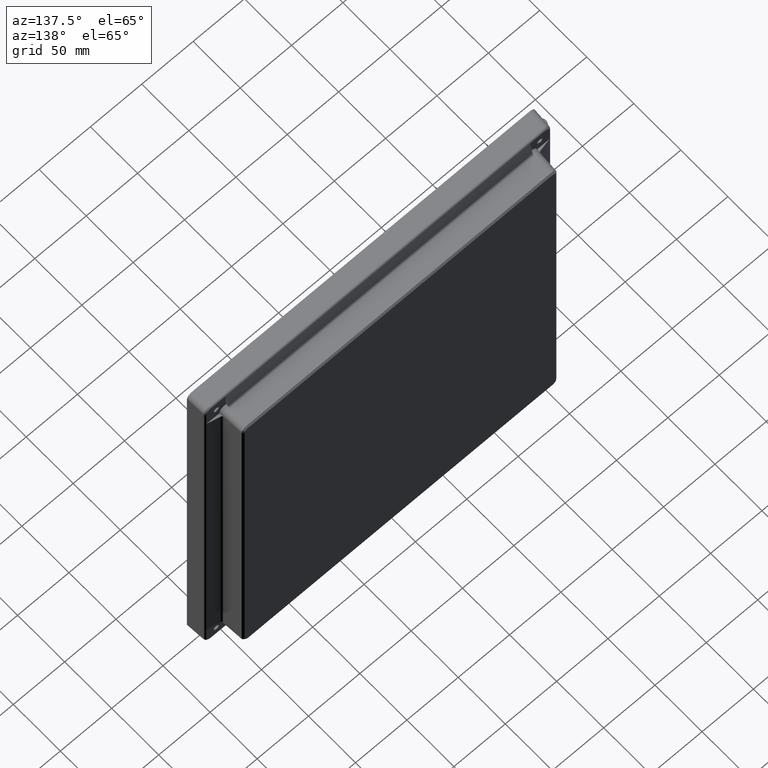
[diagram: clean part render]
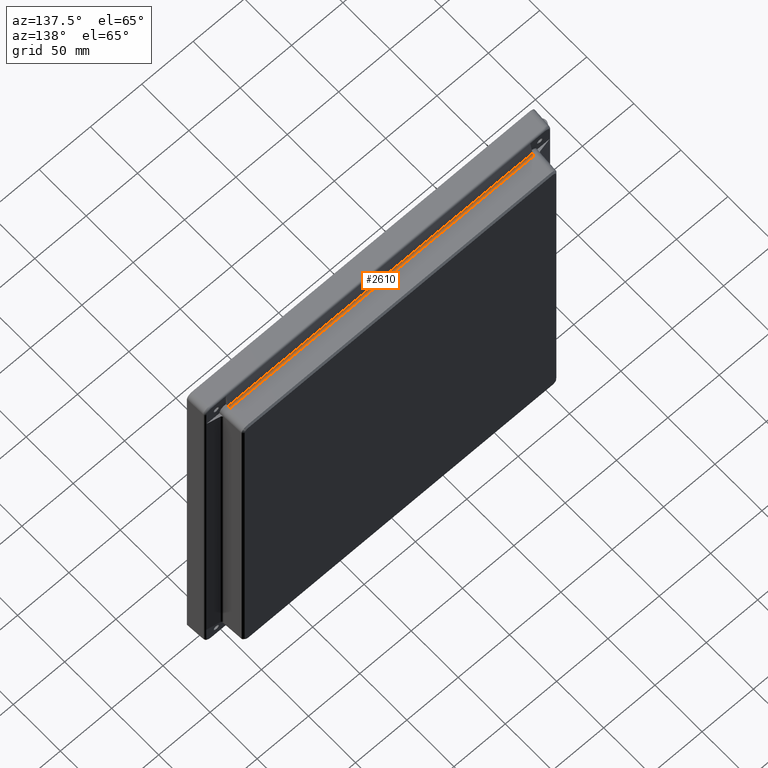
[diagram: same view with one face highlighted and labeled with its STEP entity id]
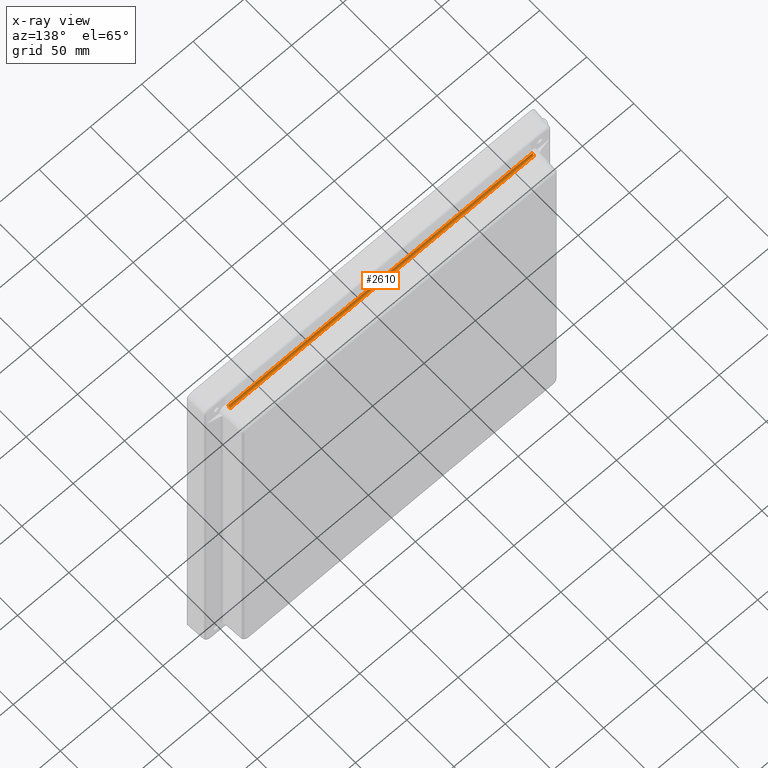
[diagram: x-ray of the same camera — body ghosted, the highlighted face saturated]
A machine part, auxiliary view. The second image highlights one B-rep face of the part: STEP entity #2610.
The next image is the same camera in x-ray: the body ghosted, the highlighted face saturated — about 0% of this face is hidden behind the body in this view.
In plain terms, the highlighted cylindrical surface (edge-blend (fillet) strip) has radius 2 mm, axis along (1, 0, 0).
Its self-contained STEP definition (entity closure, byte-faithful):
#370 = VERTEX_POINT ( 'NONE', #4059 ) ;
#372 = EDGE_CURVE ( 'NONE', #370, #373, #4053, .T. ) ;
#373 = VERTEX_POINT ( 'NONE', #4046 ) ;
#1942 = VERTEX_POINT ( 'NONE', #13440 ) ;
#1944 = EDGE_CURVE ( 'NONE', #1942, #1945, #13439, .T. ) ;
#1945 = VERTEX_POINT ( 'NONE', #13435 ) ;
#2417 = EDGE_CURVE ( 'NONE', #1945, #370, #4638, .T. ) ;
#2508 = EDGE_CURVE ( 'NONE', #373, #1942, #5033, .T. ) ;
#2610 = ADVANCED_FACE ( 'NONE', ( #5387 ), #5380, .F. ) ;
#2611 = EDGE_LOOP ( 'NONE', ( #2612, #2613, #2614, #2615 ) ) ;
#2612 = ORIENTED_EDGE ( 'NONE', *, *, #2417, .F. ) ;
#2613 = ORIENTED_EDGE ( 'NONE', *, *, #1944, .F. ) ;
#2614 = ORIENTED_EDGE ( 'NONE', *, *, #2508, .F. ) ;
#2615 = ORIENTED_EDGE ( 'NONE', *, *, #372, .F. ) ;
#4046 = CARTESIAN_POINT ( 'NONE',  ( -148.0491065654374600, 12.85145524767155400, 182.3108799931434900 ) ) ;
#4048 = DIRECTION ( 'NONE',  ( -1.000000000000000000, 0.0000000000000000000, -0.0000000000000000000 ) ) ;
#4050 = VECTOR ( 'NONE', #4048, 1000.000000000000000 ) ;
#4052 = CARTESIAN_POINT ( 'NONE',  ( -148.0323846841269500, 12.85145524767155000, 182.3108799931434900 ) ) ;
#4053 = LINE ( 'NONE', #4052, #4050 ) ;
#4059 = CARTESIAN_POINT ( 'NONE',  ( 148.0491065654375700, 12.85145524767155200, 182.3108799931434900 ) ) ;
#4638 =( BOUNDED_CURVE ( )  B_SPLINE_CURVE ( 3, ( #4726, #4725, #4724, #4723 ),
 .UNSPECIFIED., .F., .T. ) 
 B_SPLINE_CURVE_WITH_KNOTS ( ( 4, 4 ),
 ( 4.764748857944519000, 6.073745796940270800 ),
 .UNSPECIFIED. ) 
 CURVE ( )  GEOMETRIC_REPRESENTATION_ITEM ( )  RATIONAL_B_SPLINE_CURVE ( ( 1.000000000000000000, 0.8622355601941557000, 0.8622355601941557000, 1.000000000000000000 ) ) 
 REPRESENTATION_ITEM ( '' )  );
#4723 = CARTESIAN_POINT ( 'NONE',  ( 148.0491065654375700, 12.85145524767155200, 182.3108799931434900 ) ) ;
#4724 = CARTESIAN_POINT ( 'NONE',  ( 148.0388492289616500, 13.04717688702083800, 181.3900820755843300 ) ) ;
#4725 = CARTESIAN_POINT ( 'NONE',  ( 148.0013345523372500, 13.76299955948742800, 180.7787117568138100 ) ) ;
#4726 = CARTESIAN_POINT ( 'NONE',  ( 147.9520671007932400, 14.70307853665327800, 180.7294443052698800 ) ) ;
#4941 = CARTESIAN_POINT ( 'NONE',  ( -168.4759222071695000, 14.80775044913916500, 182.7267033747789900 ) ) ;
#4949 = DIRECTION ( 'NONE',  ( 0.0000000000000000000, 0.0000000000000000000, -1.000000000000000000 ) ) ;
#4951 = DIRECTION ( 'NONE',  ( 1.000000000000000000, 0.0000000000000000000, 0.0000000000000000000 ) ) ;
#5021 = CARTESIAN_POINT ( 'NONE',  ( -147.9520671007931600, 14.70307853665327600, 180.7294443052698500 ) ) ;
#5023 = CARTESIAN_POINT ( 'NONE',  ( -148.0013345523370800, 13.76299955948742400, 180.7787117568137500 ) ) ;
#5025 = CARTESIAN_POINT ( 'NONE',  ( -148.0388492289614800, 13.04717688702083600, 181.3900820755844200 ) ) ;
#5027 = CARTESIAN_POINT ( 'NONE',  ( -148.0491065654374600, 12.85145524767155400, 182.3108799931434900 ) ) ;
#5033 =( BOUNDED_CURVE ( )  B_SPLINE_CURVE ( 3, ( #5027, #5025, #5023, #5021 ),
 .UNSPECIFIED., .F., .T. ) 
 B_SPLINE_CURVE_WITH_KNOTS ( ( 4, 4 ),
 ( 3.351032163829108500, 4.660029102824859500 ),
 .UNSPECIFIED. ) 
 CURVE ( )  GEOMETRIC_REPRESENTATION_ITEM ( )  RATIONAL_B_SPLINE_CURVE ( ( 1.000000000000000000, 0.8622355601941560400, 0.8622355601941560400, 1.000000000000000000 ) ) 
 REPRESENTATION_ITEM ( '' )  );
#5380 = CYLINDRICAL_SURFACE ( 'NONE', #5385, 2.000000000000001800 ) ;
#5385 = AXIS2_PLACEMENT_3D ( 'NONE', #4941, #4951, #4949 ) ;
#5387 = FACE_OUTER_BOUND ( 'NONE', #2611, .T. ) ;
#13435 = CARTESIAN_POINT ( 'NONE',  ( 147.9520671007932400, 14.70307853665327800, 180.7294443052698800 ) ) ;
#13436 = DIRECTION ( 'NONE',  ( 1.000000000000000000, -0.0000000000000000000, 0.0000000000000000000 ) ) ;
#13437 = VECTOR ( 'NONE', #13436, 1000.000000000000000 ) ;
#13438 = CARTESIAN_POINT ( 'NONE',  ( 148.0323846841270400, 14.70307853665327600, 180.7294443052698500 ) ) ;
#13439 = LINE ( 'NONE', #13438, #13437 ) ;
#13440 = CARTESIAN_POINT ( 'NONE',  ( -147.9520671007931600, 14.70307853665327600, 180.7294443052698500 ) ) ;